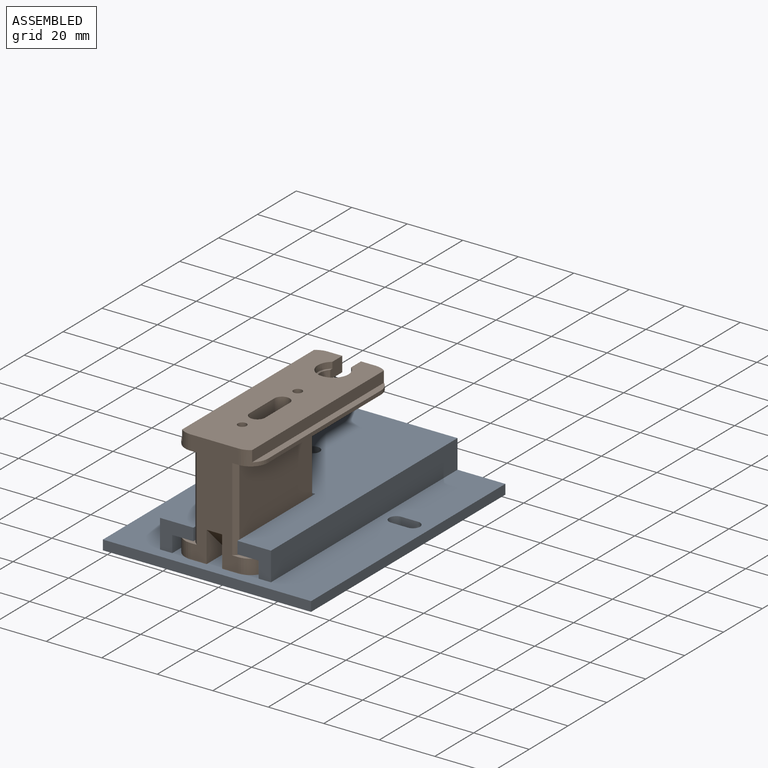
[diagram: assembled view]
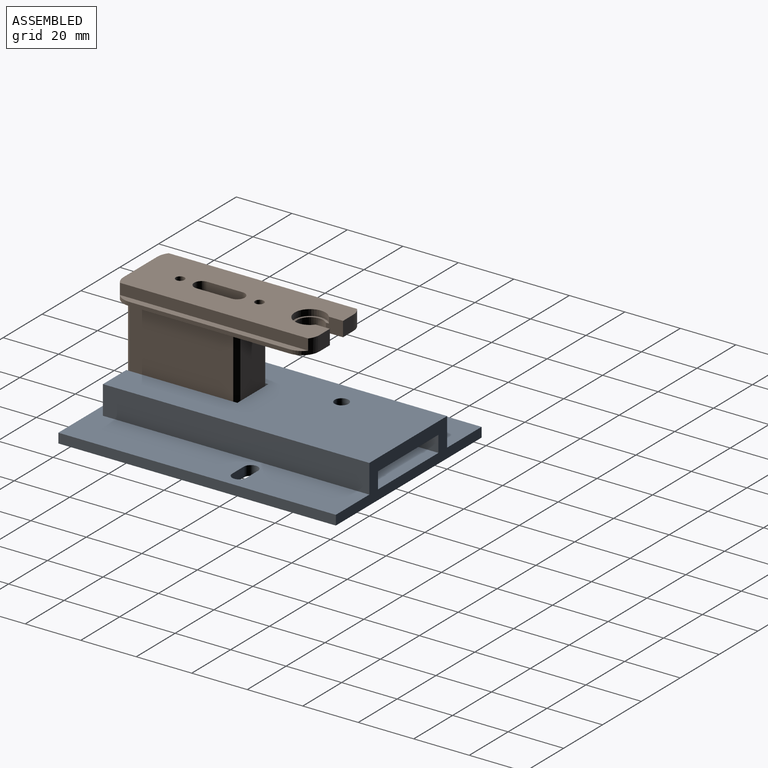
[diagram: assembled view, second angle]
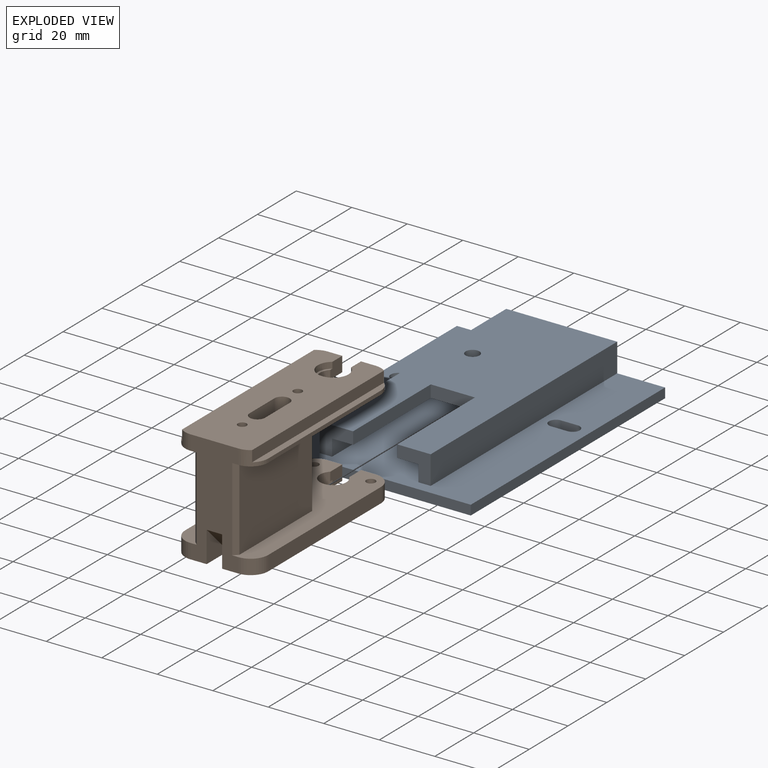
[diagram: exploded view]
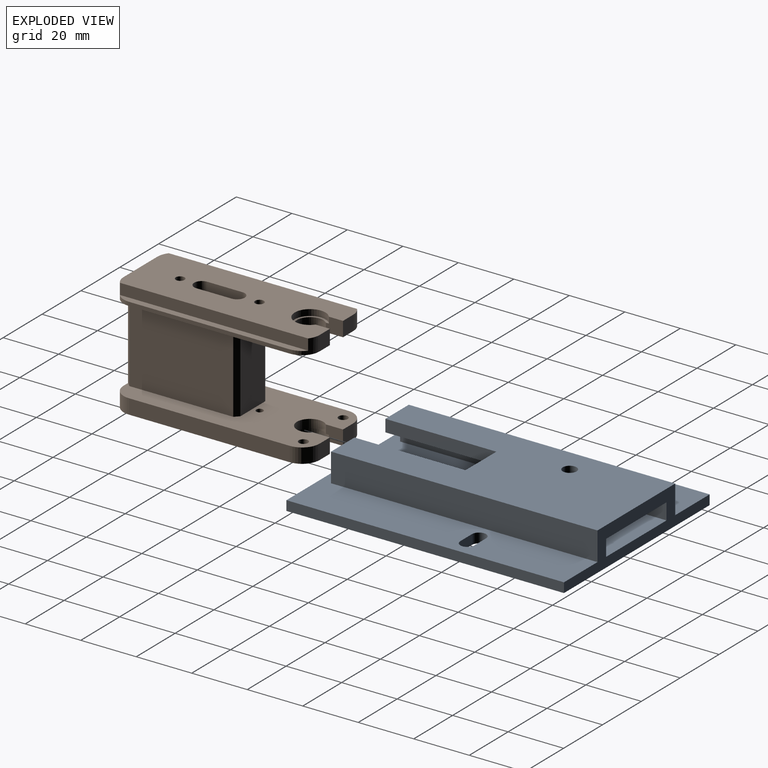
[diagram: exploded view, second angle]
ASSEMBLY  parts=2 mates=4
PART A: 26 faces, bbox 75x100x13.8 mm
  f0: plane 75x13.8mm, normal (0,1,0), area 491mm2, adj f3,f4,f5,f6,f16,f17,f18,f19
  f1: cylinder r=2.5mm len=5mm, axis (0,0,1), area 69.1mm2, adj f18,f19
  f2: plane 15.92x4.4mm, normal (0,-1,0), area 70mm2, adj f18,f19,f20,f23
  f3: plane 100x75mm, normal (0,0,1), area 6543.6mm2, adj f0,f5,f6,f7,f8,f9,f10,f11
  f4: plane 100x75mm, normal (0,0,-1), area 7398mm2, adj f0,f5,f6,f7,f8,f9,f10,f11
  f5: plane 100x3.5mm, normal (1,0,0), area 350mm2, adj f0,f3,f4,f7
  f6: plane 100x3.5mm, normal (-1,0,0), area 350mm2, adj f0,f3,f4,f7
  f7: plane 75x3.5mm, normal (0,-1,0), area 262.5mm2, adj f3,f4,f5,f6
  f8: cylinder r=2.55mm len=5.1mm, axis (0,0,1), area 28mm2, adj f3,f4,f9,f11
  f9: plane 6x3.5mm, normal (0,1,0), area 21mm2, adj f3,f4,f8,f10
  f10: cylinder r=2.55mm len=5.1mm, axis (0,0,1), area 28.7mm2, adj f3,f4,f9,f11
  f11: plane 5.8x3.5mm, normal (0,-1,0), area 20.3mm2, adj f3,f4,f8,f10
  f12: plane 5.8x3.5mm, normal (0,-1,0), area 20.3mm2, adj f3,f4,f13,f15
  f13: cylinder r=2.55mm len=5.1mm, axis (0,0,1), area 28.7mm2, adj f3,f4,f12,f14
  f14: plane 6x3.5mm, normal (0,1,0), area 21mm2, adj f3,f4,f13,f15
  f15: cylinder r=2.55mm len=5.1mm, axis (0,0,1), area 28mm2, adj f3,f4,f12,f14
  f16: plane 96x10.3mm, normal (-1,0,0), area 988.8mm2, adj f0,f3,f18,f22
  f17: plane 96x10.3mm, normal (1,0,0), area 988.8mm2, adj f0,f3,f18,f25
  f18: plane 96x40mm, normal (0,0,1), area 3183.6mm2, adj f0,f1,f2,f16,f17,f20,f22,f23
  f19: plane 96x31.1mm, normal (0,0,-1), area 2329.2mm2, adj f0,f1,f2,f20,f21,f22,f23,f24
  f20: plane 40x4.4mm, normal (1,0,0), area 176mm2, adj f2,f18,f19,f22
  f21: plane 96x5.9mm, normal (1,0,0), area 566.4mm2, adj f0,f3,f19,f22
  f22: plane 12.04x10.3mm, normal (0,-1,0), area 79.2mm2, adj f3,f16,f18,f19,f20,f21
  f23: plane 40x4.4mm, normal (-1,0,0), area 176mm2, adj f2,f18,f19,f25
  f24: plane 96x5.9mm, normal (-1,0,0), area 566.4mm2, adj f0,f3,f19,f25
  f25: plane 12.04x10.3mm, normal (0,-1,0), area 79.2mm2, adj f3,f17,f18,f19,f23,f24
PART B: 62 faces, bbox 30x70.6x40.7 mm
  f0: cylinder r=2.77mm len=19.3mm, axis (0,0,-1), area 167.9mm2, adj f1,f3,f10,f49
  f1: plane 19.3x12.7mm, normal (1,0,0), area 245.2mm2, adj f0,f2,f10,f49
  f2: cylinder r=2.77mm len=19.3mm, axis (0,0,-1), area 167.9mm2, adj f1,f3,f10,f49
  f3: plane 19.3x12.7mm, normal (-1,0,0), area 245.2mm2, adj f0,f2,f10,f49
  f4: plane 5.33x5.26mm, normal (0,1,0), area 28mm2, adj f10,f11,f25,f33
  f5: plane 5.33x5.26mm, normal (0,1,0), area 28mm2, adj f15,f19,f26,f35
  f6: plane 57.91x1.37mm, normal (-1,0,0), area 79.4mm2, adj f11,f23,f24,f42
  f7: plane 40.72x17.27mm, normal (0,-1,0), area 507.2mm2, adj f10,f11,f15,f19,f20,f21,f22,f23
  f8: plane 57.91x1.37mm, normal (1,0,0), area 79.4mm2, adj f11,f20,f25,f44
  f9: plane 5.33x5.26mm, normal (0,1,0), area 28mm2, adj f10,f11,f24,f32
  f10: plane 70.61x25.2mm, normal (0,0,1), area 1536.3mm2, adj f0,f1,f2,f3,f4,f7,f9,f20
  f11: plane 70.61x29.97mm, normal (0,0,-1), area 1330mm2, adj f4,f6,f7,f8,f9,f12,f13,f14
  f12: plane 37.44x30.05mm, normal (1,0,0), area 1125mm2, adj f11,f15,f46,f47
  f13: plane 37.44x30.05mm, normal (-1,0,0), area 1125mm2, adj f11,f15,f45,f48
  f14: plane 30.05x12.83mm, normal (0,1,0), area 385.4mm2, adj f11,f15,f47,f48
  f15: plane 70.61x29.97mm, normal (0,0,1), area 1315.7mm2, adj f5,f7,f12,f13,f14,f16,f17,f18
  f16: plane 57.91x5.33mm, normal (-1,0,0), area 308.9mm2, adj f15,f19,f22,f27
  f17: plane 5.33x5.26mm, normal (0,1,0), area 28mm2, adj f15,f19,f27,f34
  f18: plane 57.91x5.33mm, normal (1,0,0), area 308.9mm2, adj f15,f19,f21,f26
  f19: plane 70.61x29.97mm, normal (0,0,-1), area 1685.4mm2, adj f5,f7,f16,f17,f18,f21,f22,f26
  f20: cylinder r=6.35mm len=6.35mm, axis (0,0,-1), area 30.6mm2, adj f7,f8,f10,f11,f43,f44
  f21: cylinder r=6.35mm len=6.35mm, axis (0,0,1), area 53.2mm2, adj f7,f15,f18,f19
  f22: cylinder r=6.35mm len=6.35mm, axis (0,0,1), area 53.2mm2, adj f7,f15,f16,f19
  f23: cylinder r=6.35mm len=6.35mm, axis (0,0,-1), area 30.6mm2, adj f6,f7,f10,f11,f41,f42
  f24: cylinder r=6.35mm len=6.35mm, axis (0,0,-1), area 30.6mm2, adj f6,f9,f10,f11,f41,f42
  f25: cylinder r=6.35mm len=6.35mm, axis (0,0,-1), area 30.6mm2, adj f4,f8,f10,f11,f43,f44
  f26: cylinder r=6.35mm len=6.35mm, axis (0,0,1), area 53.2mm2, adj f5,f15,f18,f19
  f27: cylinder r=6.35mm len=6.35mm, axis (0,0,1), area 53.2mm2, adj f15,f16,f17,f19
  f28: cylinder r=4.75mm len=9.5mm, axis (0,0,1), area 69.2mm2, adj f15,f34,f35,f39
  f29: cylinder r=4.75mm len=9.5mm, axis (0,0,1), area 69.2mm2, adj f11,f30,f32,f33
  f30: plane 11.1x9.95mm, normal (0,0,1), area 20mm2, adj f29,f31,f32,f33
  f31: cylinder r=5.55mm len=11.1mm, axis (0,0,1), area 61.7mm2, adj f10,f30,f32,f33
  f32: plane 6.16x5.33mm, normal (1,0,0), area 30.5mm2, adj f9,f10,f11,f29,f30,f31
  f33: plane 6.16x5.33mm, normal (-1,0,0), area 30.5mm2, adj f4,f10,f11,f29,f30,f31
  f34: plane 6.16x5.33mm, normal (1,0,0), area 30.5mm2, adj f15,f17,f19,f28,f39,f40
  f35: plane 6.16x5.33mm, normal (-1,0,0), area 30.5mm2, adj f5,f15,f19,f28,f39,f40
  f36: cone r=1.57mm half-angle=59deg, axis (0,0,1), area 9.1mm2, adj f37
  f37: cylinder r=1.57mm len=6.35mm, axis (0,0,1), area 62.8mm2, adj f10,f36
  f38: cylinder r=1.57mm len=5.33mm, axis (0,0,1), area 52.8mm2, adj f10,f11
  f39: plane 11.1x9.95mm, normal (0,0,-1), area 20mm2, adj f28,f34,f35,f40
  f40: cylinder r=5.55mm len=11.1mm, axis (0,0,-1), area 61.7mm2, adj f19,f34,f35,f39
  f41: plane 67.84x3.96mm, normal (-1,0,0), area 268.8mm2, adj f10,f23,f24,f42
  f42: plane 67.84x2.39mm, normal (0,0,1), area 154.8mm2, adj f6,f23,f24,f41
  f43: plane 67.84x3.96mm, normal (1,0,0), area 268.8mm2, adj f10,f20,f25,f44
  f44: plane 67.84x2.39mm, normal (0,0,1), area 154.8mm2, adj f8,f20,f25,f43
  f45: plane 30.05x1.52mm, normal (-0.71,-0.71,0), area 64.8mm2, adj f7,f11,f13,f15
  f46: plane 30.05x1.52mm, normal (0.71,-0.71,0), area 64.8mm2, adj f7,f11,f12,f15
  f47: plane 30.05x1.52mm, normal (0.71,0.71,0), area 64.8mm2, adj f11,f12,f14,f15
  f48: plane 30.05x1.52mm, normal (-0.71,0.71,0), area 64.8mm2, adj f11,f13,f14,f15
  f49: plane 21.82x9.12mm, normal (0,0,-1), area 86.7mm2, adj f0,f1,f2,f3,f50,f51,f52,f53
  f50: cylinder r=4.56mm len=21.41mm, axis (0,0,-1), area 306.7mm2, adj f19,f49,f51,f53
  f51: plane 21.41x12.7mm, normal (-1,0,0), area 271.9mm2, adj f19,f49,f50,f52
  f52: cylinder r=4.56mm len=21.41mm, axis (0,0,-1), area 306.7mm2, adj f19,f49,f51,f53
  f53: plane 21.41x12.7mm, normal (1,0,0), area 271.9mm2, adj f19,f49,f50,f52
  f54: plane 11.18x11.18mm, normal (-1,0,0), area 62.5mm2, adj f7,f19,f56
  f55: plane 11.18x11.18mm, normal (1,0,0), area 62.5mm2, adj f7,f19,f56
  f56: plane 11.18x11.18mm, normal (0,-0.71,-0.71), area 88.3mm2, adj f7,f19,f54,f55
  f57: cylinder r=1.65mm len=5.33mm, axis (0,0,-1), area 55.3mm2, adj f15,f19
  f58: cylinder r=1.65mm len=5.33mm, axis (0,0,-1), area 55.3mm2, adj f15,f19
  f59: cylinder r=1.25mm len=5.33mm, axis (0,0,-1), area 41.9mm2, adj f15,f19
  f60: cone r=1.25mm half-angle=59deg, axis (0,0,-1), area 5.7mm2, adj f61
  f61: cylinder r=1.25mm len=11.15mm, axis (0,0,-1), area 87.6mm2, adj f19,f60
PLACE A t=(17.17,68.18,-18.09)mm
PLACE B t=(2.41,21.69,20.8)mm
MATE parallel B.f19 <-> A.f3  axis (0,0,-1) through (14.61,32.87,-14.59)mm
MATE planar B.f14 <-> A.f2  axis (0,1,0) through (17.4,62.18,5.77)mm
MATE planar A.f20 <-> B.f13  axis (1,0,0) through (9.46,22.18,-6.49)mm
MATE planar B.f19 <-> A.f3  axis (0,0,-1) through (17.4,56.51,-14.59)mm
